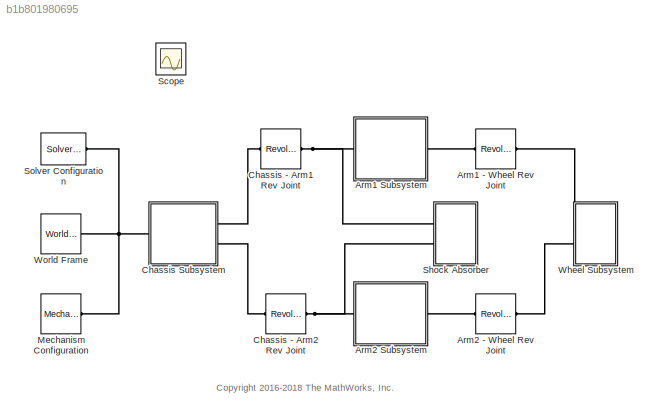
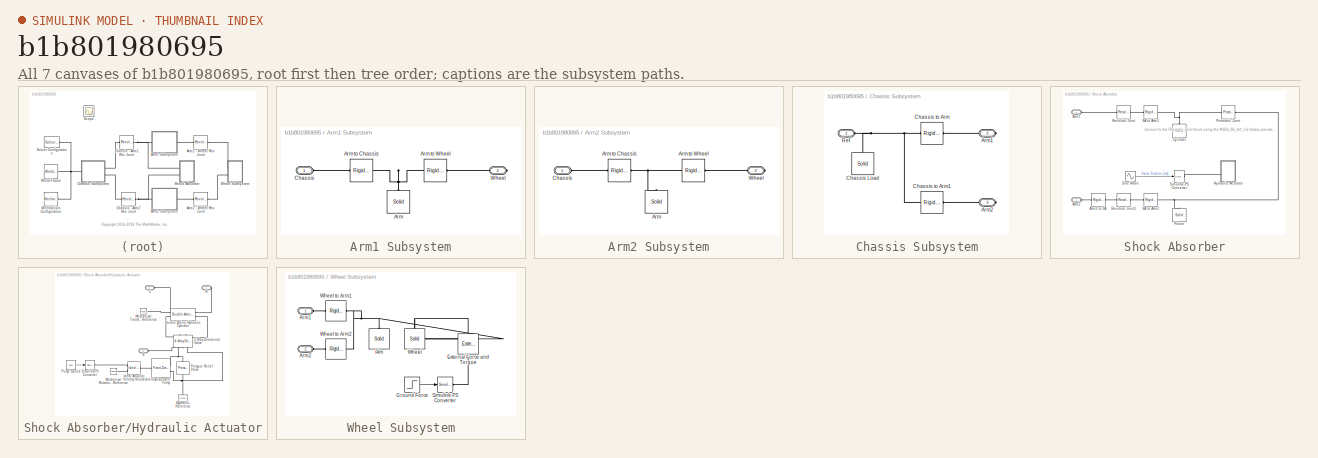
[diagram: thumbnail index - all 7 canvases of the model, root first then tree order]
MODEL slx_b1b801980695
KIND model
CONFIG AbsTol = auto
CONFIG EnableMultiTasking = on
CONFIG FixedStep = auto
CONFIG MaxStep = auto
CONFIG MinStep = auto
CONFIG PreLoadFcn = suspension_params;
CONFIG RelTol = 1e-3
CONFIG SampleTimeConstraint = Unconstrained
CONFIG Solver = ode23t
CONFIG SolverName = ode23t
CONFIG StartTime = 0.0
CONFIG StopTime = 10.0
BLOCK [Reference] Arm1 - Wheel Rev Joint  REF=sm_lib/Joints/Revolute Joint
  Ports = [0, 0, 0, 0, 0, 1, 1]
  SourceBlock = sm_lib/Joints/Revolute Joint
  SourceProductBaseCode = MS
  SourceProductName = Simscape Multibody
  SourceType = Revolute Joint
BLOCK [SubSystem] Arm1 Subsystem
  Ports = [0, 0, 0, 0, 0, 1, 1]
  RequestExecContextInheritance = off
  Variant = off
BLOCK [Reference] Arm1 Subsystem/Arm  REF=sm_lib/Body Elements/Solid
  Ports = [0, 0, 0, 0, 0, 0, 1]
  SourceBlock = sm_lib/Body Elements/Solid
  SourceProductBaseCode = MS
  SourceProductName = Simscape Multibody
  SourceType = Solid
BLOCK [Reference] Arm1 Subsystem/Arm to Chassis  REF=sm_lib/Frames and
Transforms/Rigid
Transform
  Ports = [0, 0, 0, 0, 0, 1, 1]
  SourceBlock = sm_lib/Frames and\nTransforms/Rigid\nTransform
  SourceProductBaseCode = MS
  SourceProductName = Simscape Multibody
  SourceType = Rigid\nTransform
BLOCK [Reference] Arm1 Subsystem/Arm to Wheel  REF=sm_lib/Frames and
Transforms/Rigid
Transform
  Ports = [0, 0, 0, 0, 0, 1, 1]
  SourceBlock = sm_lib/Frames and\nTransforms/Rigid\nTransform
  SourceProductBaseCode = MS
  SourceProductName = Simscape Multibody
  SourceType = Rigid\nTransform
BLOCK [PMIOPort] Arm1 Subsystem/Chassis
  Port = 1
  Side = Left
BLOCK [PMIOPort] Arm1 Subsystem/Wheel
  Port = 2
  Side = Right
BLOCK [Reference] Arm2 - Wheel Rev Joint  REF=sm_lib/Joints/Revolute Joint
  Ports = [0, 0, 0, 0, 0, 1, 1]
  SourceBlock = sm_lib/Joints/Revolute Joint
  SourceProductBaseCode = MS
  SourceProductName = Simscape Multibody
  SourceType = Revolute Joint
BLOCK [SubSystem] Arm2 Subsystem
  Ports = [0, 0, 0, 0, 0, 1, 1]
  RequestExecContextInheritance = off
  Variant = off
BLOCK [Reference] Arm2 Subsystem/Arm  REF=sm_lib/Body Elements/Solid
  Ports = [0, 0, 0, 0, 0, 0, 1]
  SourceBlock = sm_lib/Body Elements/Solid
  SourceProductBaseCode = MS
  SourceProductName = Simscape Multibody
  SourceType = Solid
BLOCK [Reference] Arm2 Subsystem/Arm to Chassis  REF=sm_lib/Frames and
Transforms/Rigid
Transform
  Ports = [0, 0, 0, 0, 0, 1, 1]
  SourceBlock = sm_lib/Frames and\nTransforms/Rigid\nTransform
  SourceProductBaseCode = MS
  SourceProductName = Simscape Multibody
  SourceType = Rigid\nTransform
BLOCK [Reference] Arm2 Subsystem/Arm to Wheel  REF=sm_lib/Frames and
Transforms/Rigid
Transform
  Ports = [0, 0, 0, 0, 0, 1, 1]
  SourceBlock = sm_lib/Frames and\nTransforms/Rigid\nTransform
  SourceProductBaseCode = MS
  SourceProductName = Simscape Multibody
  SourceType = Rigid\nTransform
BLOCK [PMIOPort] Arm2 Subsystem/Chassis
  Port = 1
  Side = Left
BLOCK [PMIOPort] Arm2 Subsystem/Wheel
  Port = 2
  Side = Right
BLOCK [Reference] Chassis - Arm1 Rev Joint  REF=sm_lib/Joints/Revolute Joint
  Ports = [0, 0, 0, 0, 0, 1, 1]
  SourceBlock = sm_lib/Joints/Revolute Joint
  SourceProductBaseCode = MS
  SourceProductName = Simscape Multibody
  SourceType = Revolute Joint
BLOCK [Reference] Chassis - Arm2 Rev Joint  REF=sm_lib/Joints/Revolute Joint
  Ports = [0, 0, 0, 0, 0, 1, 1]
  SourceBlock = sm_lib/Joints/Revolute Joint
  SourceProductBaseCode = MS
  SourceProductName = Simscape Multibody
  SourceType = Revolute Joint
BLOCK [SubSystem] Chassis Subsystem
  Ports = [0, 0, 0, 0, 0, 1, 2]
  RequestExecContextInheritance = off
  Variant = off
BLOCK [PMIOPort] Chassis Subsystem/Arm1
  Port = 2
  Side = Right
BLOCK [PMIOPort] Chassis Subsystem/Arm2
  Port = 3
  Side = Right
BLOCK [Reference] Chassis Subsystem/Chassis Load  REF=sm_lib/Body Elements/Solid
  Ports = [0, 0, 0, 0, 0, 0, 1]
  SourceBlock = sm_lib/Body Elements/Solid
  SourceProductBaseCode = MS
  SourceProductName = Simscape Multibody
  SourceType = Solid
BLOCK [Reference] Chassis Subsystem/Chassis to Arm  REF=sm_lib/Frames and
Transforms/Rigid
Transform
  Ports = [0, 0, 0, 0, 0, 1, 1]
  SourceBlock = sm_lib/Frames and\nTransforms/Rigid\nTransform
  SourceProductBaseCode = MS
  SourceProductName = Simscape Multibody
  SourceType = Rigid\nTransform
BLOCK [Reference] Chassis Subsystem/Chassis to Arm1  REF=sm_lib/Frames and
Transforms/Rigid
Transform
  Ports = [0, 0, 0, 0, 0, 1, 1]
  SourceBlock = sm_lib/Frames and\nTransforms/Rigid\nTransform
  SourceProductBaseCode = MS
  SourceProductName = Simscape Multibody
  SourceType = Rigid\nTransform
BLOCK [PMIOPort] Chassis Subsystem/Ref
  Port = 1
  Side = Left
BLOCK [Reference] Mechanism Configuration  REF=sm_lib/Utilities/Mechanism
Configuration
  Ports = [0, 0, 0, 0, 0, 0, 1]
  SourceBlock = sm_lib/Utilities/Mechanism\nConfiguration
  SourceProductBaseCode = MS
  SourceProductName = Simscape Multibody
  SourceType = Mechanism\nConfiguration
BLOCK [Scope] Scope
  IOType = viewer
  NumInputPorts = 1
  Ports = []
  ScopeSpecificationString = Simulink.scopes.TimeScopeBlockCfg('CurrentConfiguration', extmgr.ConfigurationSet(extmgr.Configuration('Core','General UI',true),extmgr.Configuration('Core','Source UI',true),extmgr.Configuration('Sources','WiredSimulink',true,'DataLoggingVariableName','ScopeData1'),extmgr.Configuration('Visuals','Time Domain',true,'SerializedDisplays',{struct('MinYLimReal','-0.62499','MaxYLimReal','0.625','YLabel...<+1407ch>
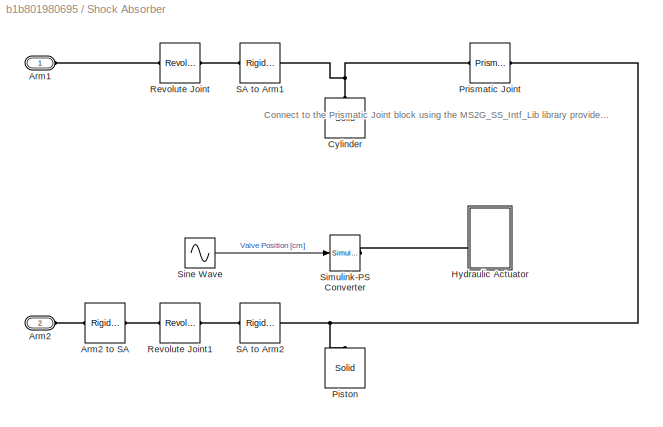
BLOCK [SubSystem] Shock Absorber
  Ports = [0, 0, 0, 0, 0, 2]
  RequestExecContextInheritance = off
  Variant = off
BLOCK [PMIOPort] Shock Absorber/Arm1
  Port = 1
  Side = Left
BLOCK [PMIOPort] Shock Absorber/Arm2
  Port = 2
  Side = Left
BLOCK [Reference] Shock Absorber/Arm2 to SA  REF=sm_lib/Frames and
Transforms/Rigid
Transform
  Ports = [0, 0, 0, 0, 0, 1, 1]
  SourceBlock = sm_lib/Frames and\nTransforms/Rigid\nTransform
  SourceProductBaseCode = MS
  SourceProductName = Simscape Multibody
  SourceType = Rigid\nTransform
BLOCK [Reference] Shock Absorber/Cylinder  REF=sm_lib/Body Elements/Solid
  Ports = [0, 0, 0, 0, 0, 0, 1]
  SourceBlock = sm_lib/Body Elements/Solid
  SourceProductBaseCode = MS
  SourceProductName = Simscape Multibody
  SourceType = Solid
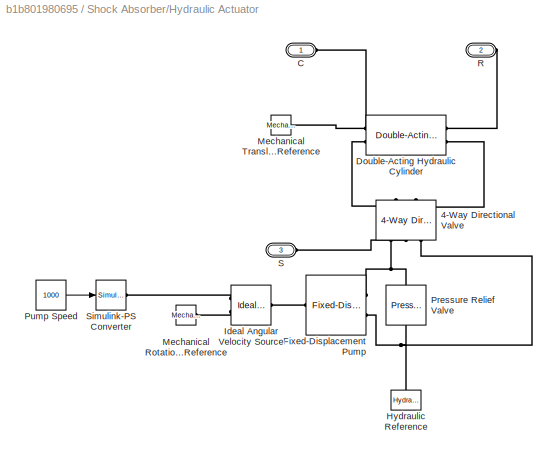
BLOCK [SubSystem] Shock Absorber/Hydraulic Actuator
  Ports = [0, 0, 0, 0, 0, 2, 1]
  RequestExecContextInheritance = off
  Variant = off
BLOCK [Reference] Shock Absorber/Hydraulic Actuator/4-Way Directional Valve  REF=sh_lib/Valves/Directional Valves/4-Way Directional
Valve
  Ports = [0, 0, 0, 0, 0, 2, 3]
  SourceBlock = sh_lib/Valves/Directional Valves/4-Way Directional\nValve
  SourceProductBaseCode = SH
  SourceProductName = Simscape Fluids
  SourceType = 4-Way Directional\nValve
BLOCK [PMIOPort] Shock Absorber/Hydraulic Actuator/C
  Port = 1
  Side = Left
BLOCK [Reference] Shock Absorber/Hydraulic Actuator/Double-Acting Hydraulic Cylinder  REF=sh_lib/Hydraulic Cylinders/Double-Acting
Hydraulic Cylinder
  Ports = [0, 0, 0, 0, 0, 2, 2]
  SourceBlock = sh_lib/Hydraulic Cylinders/Double-Acting\nHydraulic Cylinder
  SourceProductBaseCode = SH
  SourceProductName = Simscape Fluids
  SourceType = Double-Acting\nHydraulic Cylinder
BLOCK [Reference] Shock Absorber/Hydraulic Actuator/Fixed-Displacement Pump  REF=sh_lib/Pumps and Motors/Fixed-Displacement
Pump
  Ports = [0, 0, 0, 0, 0, 1, 2]
  SourceBlock = sh_lib/Pumps and Motors/Fixed-Displacement\nPump
  SourceProductBaseCode = SH
  SourceProductName = Simscape Fluids
  SourceType = Fixed-Displacement\nPump
BLOCK [Reference] Shock Absorber/Hydraulic Actuator/Hydraulic Reference  REF=fl_lib/Hydraulic/Hydraulic Elements/Hydraulic Reference
  Ports = [0, 0, 0, 0, 0, 1]
  SourceBlock = fl_lib/Hydraulic/Hydraulic Elements/Hydraulic Reference
  SourceProductBaseCode = SS
  SourceProductName = Simscape
  SourceType = Hydraulic Reference
BLOCK [Reference] Shock Absorber/Hydraulic Actuator/Ideal Angular Velocity Source  REF=fl_lib/Mechanical/Mechanical Sources/Ideal Angular
Velocity Source
  Ports = [0, 0, 0, 0, 0, 1, 2]
  SourceBlock = fl_lib/Mechanical/Mechanical Sources/Ideal Angular\nVelocity Source
  SourceProductBaseCode = SS
  SourceProductName = Simscape
  SourceType = Ideal Angular\nVelocity Source
BLOCK [Reference] Shock Absorber/Hydraulic Actuator/Mechanical Rotational Reference  REF=fl_lib/Mechanical/Rotational Elements/Mechanical
Rotational Reference
  Ports = [0, 0, 0, 0, 0, 1]
  SourceBlock = fl_lib/Mechanical/Rotational Elements/Mechanical\nRotational Reference
  SourceProductBaseCode = SS
  SourceProductName = Simscape
  SourceType = Mechanical\nRotational Reference
BLOCK [Reference] Shock Absorber/Hydraulic Actuator/Mechanical Translational Reference  REF=fl_lib/Mechanical/Translational
Elements/Mechanical
Translational
Reference
  Ports = [0, 0, 0, 0, 0, 1]
  SourceBlock = fl_lib/Mechanical/Translational\nElements/Mechanical\nTranslational\nReference
  SourceProductBaseCode = SS
  SourceProductName = Simscape
  SourceType = Mechanical\nTranslational\nReference
BLOCK [Reference] Shock Absorber/Hydraulic Actuator/Pressure Relief Valve  REF=sh_lib/Valves/Pressure Control
Valves/Pressure Relief
Valve
  Ports = [0, 0, 0, 0, 0, 1, 1]
  SourceBlock = sh_lib/Valves/Pressure Control\nValves/Pressure Relief\nValve
  SourceProductBaseCode = SH
  SourceProductName = Simscape Fluids
  SourceType = Pressure Relief\nValve
BLOCK [Constant] Shock Absorber/Hydraulic Actuator/Pump Speed
  Value = 1000
BLOCK [PMIOPort] Shock Absorber/Hydraulic Actuator/R
  Port = 2
  Side = Right
BLOCK [PMIOPort] Shock Absorber/Hydraulic Actuator/S
  Port = 3
  Side = Left
BLOCK [Reference] Shock Absorber/Hydraulic Actuator/Simulink-PS Converter  REF=nesl_utility/Simulink-PS
Converter
  Ports = [1, 0, 0, 0, 0, 0, 1]
  SourceBlock = nesl_utility/Simulink-PS\nConverter
  SourceProductBaseCode = SS
  SourceProductName = Simscape
  SourceType = Simulink-PS\nConverter
BLOCK [Reference] Shock Absorber/Piston  REF=sm_lib/Body Elements/Solid
  Ports = [0, 0, 0, 0, 0, 0, 1]
  SourceBlock = sm_lib/Body Elements/Solid
  SourceProductBaseCode = MS
  SourceProductName = Simscape Multibody
  SourceType = Solid
BLOCK [Reference] Shock Absorber/Prismatic Joint  REF=sm_lib/Joints/Prismatic
Joint
  Ports = [0, 0, 0, 0, 0, 1, 1]
  SourceBlock = sm_lib/Joints/Prismatic\nJoint
  SourceProductBaseCode = MS
  SourceProductName = Simscape Multibody
  SourceType = Prismatic\nJoint
BLOCK [Reference] Shock Absorber/Revolute Joint  REF=sm_lib/Joints/Revolute Joint
  Ports = [0, 0, 0, 0, 0, 1, 1]
  SourceBlock = sm_lib/Joints/Revolute Joint
  SourceProductBaseCode = MS
  SourceProductName = Simscape Multibody
  SourceType = Revolute Joint
BLOCK [Reference] Shock Absorber/Revolute Joint1  REF=sm_lib/Joints/Revolute Joint
  Ports = [0, 0, 0, 0, 0, 1, 1]
  SourceBlock = sm_lib/Joints/Revolute Joint
  SourceProductBaseCode = MS
  SourceProductName = Simscape Multibody
  SourceType = Revolute Joint
BLOCK [Reference] Shock Absorber/SA to Arm1  REF=sm_lib/Frames and
Transforms/Rigid
Transform
  Ports = [0, 0, 0, 0, 0, 1, 1]
  SourceBlock = sm_lib/Frames and\nTransforms/Rigid\nTransform
  SourceProductBaseCode = MS
  SourceProductName = Simscape Multibody
  SourceType = Rigid\nTransform
BLOCK [Reference] Shock Absorber/SA to Arm2  REF=sm_lib/Frames and
Transforms/Rigid
Transform
  Ports = [0, 0, 0, 0, 0, 1, 1]
  SourceBlock = sm_lib/Frames and\nTransforms/Rigid\nTransform
  SourceProductBaseCode = MS
  SourceProductName = Simscape Multibody
  SourceType = Rigid\nTransform
BLOCK [Reference] Shock Absorber/Simulink-PS Converter  REF=nesl_utility/Simulink-PS
Converter
  Ports = [1, 0, 0, 0, 0, 0, 1]
  SourceBlock = nesl_utility/Simulink-PS\nConverter
  SourceProductBaseCode = SS
  SourceProductName = Simscape
  SourceType = Simulink-PS\nConverter
BLOCK [Sin] Shock Absorber/Sine Wave
  Amplitude = 0.5
  Frequency = 2
  Ports = [0, 1]
  SampleTime = 0
BLOCK [Reference] Solver Configuration  REF=nesl_utility/Solver
Configuration
  Ports = [0, 0, 0, 0, 0, 0, 1]
  SourceBlock = nesl_utility/Solver\nConfiguration
  SourceProductBaseCode = SS
  SourceProductName = Simscape
  SourceType = Solver\nConfiguration
BLOCK [SubSystem] Wheel Subsystem
  Ports = [0, 0, 0, 0, 0, 2]
  RequestExecContextInheritance = off
  Variant = off
BLOCK [PMIOPort] Wheel Subsystem/Arm1
  Port = 1
  Side = Left
BLOCK [PMIOPort] Wheel Subsystem/Arm2
  Port = 2
  Side = Left
BLOCK [Reference] Wheel Subsystem/External Force and Torque  REF=sm_lib/Forces and
Torques/External Force
and Torque
  Ports = [0, 0, 0, 0, 0, 1, 1]
  SourceBlock = sm_lib/Forces and\nTorques/External Force\nand Torque
  SourceProductBaseCode = MS
  SourceProductName = Simscape Multibody
  SourceType = External Force\nand Torque
BLOCK [Step] Wheel Subsystem/Ground Force
  After = 1e5
  SampleTime = 0
  Time = 5
BLOCK [Reference] Wheel Subsystem/Rim  REF=sm_lib/Body Elements/Solid
  Ports = [0, 0, 0, 0, 0, 0, 1]
  SourceBlock = sm_lib/Body Elements/Solid
  SourceProductBaseCode = MS
  SourceProductName = Simscape Multibody
  SourceType = Solid
BLOCK [Reference] Wheel Subsystem/Simulink-PS Converter  REF=nesl_utility/Simulink-PS
Converter
  Ports = [1, 0, 0, 0, 0, 0, 1]
  SourceBlock = nesl_utility/Simulink-PS\nConverter
  SourceProductBaseCode = SS
  SourceProductName = Simscape
  SourceType = Simulink-PS\nConverter
BLOCK [Reference] Wheel Subsystem/Wheel  REF=sm_lib/Body Elements/Solid
  Ports = [0, 0, 0, 0, 0, 0, 1]
  SourceBlock = sm_lib/Body Elements/Solid
  SourceProductBaseCode = MS
  SourceProductName = Simscape Multibody
  SourceType = Solid
BLOCK [Reference] Wheel Subsystem/Wheel to Arm1  REF=sm_lib/Frames and
Transforms/Rigid
Transform
  Ports = [0, 0, 0, 0, 0, 1, 1]
  SourceBlock = sm_lib/Frames and\nTransforms/Rigid\nTransform
  SourceProductBaseCode = MS
  SourceProductName = Simscape Multibody
  SourceType = Rigid\nTransform
BLOCK [Reference] Wheel Subsystem/Wheel to Arm2  REF=sm_lib/Frames and
Transforms/Rigid
Transform
  Ports = [0, 0, 0, 0, 0, 1, 1]
  SourceBlock = sm_lib/Frames and\nTransforms/Rigid\nTransform
  SourceProductBaseCode = MS
  SourceProductName = Simscape Multibody
  SourceType = Rigid\nTransform
BLOCK [Reference] World Frame  REF=sm_lib/Frames and
Transforms/World Frame
  Ports = [0, 0, 0, 0, 0, 0, 1]
  SourceBlock = sm_lib/Frames and\nTransforms/World Frame
  SourceProductBaseCode = MS
  SourceProductName = Simscape Multibody
  SourceType = World Frame
ANNOTATION (root): <copyright redacted>
ANNOTATION Shock Absorber: Connect to the Prismatic Joint block using the MS2G_SS_Intf_Lib library provided.
LINE Shock Absorber/Hydraulic Actuator/Pump Speed:1 -> Shock Absorber/Hydraulic Actuator/Simulink-PS Converter:1
LINE Shock Absorber/Sine Wave:1 -> Shock Absorber/Simulink-PS Converter:1
LINE Wheel Subsystem/Ground Force:1 -> Wheel Subsystem/Simulink-PS Converter:1
PLINE Arm1 - Wheel Rev Joint:LConn1 -- Arm1 Subsystem:RConn1
PLINE Arm1 - Wheel Rev Joint:RConn1 -- Wheel Subsystem:LConn1
PNET net1: Arm1 Subsystem/Arm to Chassis:LConn1 -- Arm1 Subsystem/Arm to Wheel:LConn1 -- Arm1 Subsystem/Arm:RConn1
PLINE Arm1 Subsystem/Arm to Chassis:RConn1 -- Arm1 Subsystem/Chassis:RConn1
PLINE Arm1 Subsystem/Arm to Wheel:RConn1 -- Arm1 Subsystem/Wheel:RConn1
PNET net2: Arm1 Subsystem:LConn1 -- Chassis - Arm1 Rev Joint:RConn1 -- Shock Absorber:LConn1
PLINE Arm2 - Wheel Rev Joint:LConn1 -- Arm2 Subsystem:RConn1
PLINE Arm2 - Wheel Rev Joint:RConn1 -- Wheel Subsystem:LConn2
PNET net3: Arm2 Subsystem/Arm to Chassis:LConn1 -- Arm2 Subsystem/Arm to Wheel:LConn1 -- Arm2 Subsystem/Arm:RConn1
PLINE Arm2 Subsystem/Arm to Chassis:RConn1 -- Arm2 Subsystem/Chassis:RConn1
PLINE Arm2 Subsystem/Arm to Wheel:RConn1 -- Arm2 Subsystem/Wheel:RConn1
PNET net4: Arm2 Subsystem:LConn1 -- Chassis - Arm2 Rev Joint:RConn1 -- Shock Absorber:LConn2
PLINE Chassis - Arm1 Rev Joint:LConn1 -- Chassis Subsystem:RConn1
PLINE Chassis - Arm2 Rev Joint:LConn1 -- Chassis Subsystem:RConn2
PLINE Chassis Subsystem/Arm1:RConn1 -- Chassis Subsystem/Chassis to Arm:RConn1
PLINE Chassis Subsystem/Arm2:RConn1 -- Chassis Subsystem/Chassis to Arm1:RConn1
PNET net5: Chassis Subsystem/Chassis Load:RConn1 -- Chassis Subsystem/Chassis to Arm1:LConn1 -- Chassis Subsystem/Chassis to Arm:LConn1 -- Chassis Subsystem/Ref:RConn1
PNET net6: Chassis Subsystem:LConn1 -- Mechanism Configuration:RConn1 -- Solver Configuration:RConn1 -- World Frame:RConn1
PLINE Shock Absorber/Arm1:RConn1 -- Shock Absorber/Revolute Joint:LConn1
PLINE Shock Absorber/Arm2 to SA:LConn1 -- Shock Absorber/Arm2:RConn1
PLINE Shock Absorber/Arm2 to SA:RConn1 -- Shock Absorber/Revolute Joint1:LConn1
PNET net7: Shock Absorber/Cylinder:RConn1 -- Shock Absorber/Prismatic Joint:LConn1 -- Shock Absorber/SA to Arm1:LConn1
PLINE Shock Absorber/Hydraulic Actuator/4-Way Directional Valve:LConn1 -- Shock Absorber/Hydraulic Actuator/Double-Acting Hydraulic Cylinder:LConn2
PLINE Shock Absorber/Hydraulic Actuator/4-Way Directional Valve:LConn2 -- Shock Absorber/Hydraulic Actuator/Double-Acting Hydraulic Cylinder:RConn2
PLINE Shock Absorber/Hydraulic Actuator/4-Way Directional Valve:RConn1 -- Shock Absorber/Hydraulic Actuator/S:RConn1
PNET net8: Shock Absorber/Hydraulic Actuator/4-Way Directional Valve:RConn2 -- Shock Absorber/Hydraulic Actuator/Fixed-Displacement Pump:RConn1 -- Shock Absorber/Hydraulic Actuator/Pressure Relief Valve:LConn1
PNET net9: Shock Absorber/Hydraulic Actuator/4-Way Directional Valve:RConn3 -- Shock Absorber/Hydraulic Actuator/Fixed-Displacement Pump:RConn2 -- Shock Absorber/Hydraulic Actuator/Hydraulic Reference:LConn1 -- Shock Absorber/Hydraulic Actuator/Pressure Relief Valve:RConn1
PNET net10: Shock Absorber/Hydraulic Actuator/C:RConn1 -- Shock Absorber/Hydraulic Actuator/Double-Acting Hydraulic Cylinder:LConn1 -- Shock Absorber/Hydraulic Actuator/Mechanical Translational Reference:LConn1
PLINE Shock Absorber/Hydraulic Actuator/Double-Acting Hydraulic Cylinder:RConn1 -- Shock Absorber/Hydraulic Actuator/R:RConn1
PLINE Shock Absorber/Hydraulic Actuator/Fixed-Displacement Pump:LConn1 -- Shock Absorber/Hydraulic Actuator/Ideal Angular Velocity Source:LConn1
PLINE Shock Absorber/Hydraulic Actuator/Ideal Angular Velocity Source:RConn1 -- Shock Absorber/Hydraulic Actuator/Simulink-PS Converter:RConn1
PLINE Shock Absorber/Hydraulic Actuator/Ideal Angular Velocity Source:RConn2 -- Shock Absorber/Hydraulic Actuator/Mechanical Rotational Reference:LConn1
PLINE Shock Absorber/Hydraulic Actuator:LConn2 -- Shock Absorber/Simulink-PS Converter:RConn1
PNET net11: Shock Absorber/Piston:RConn1 -- Shock Absorber/Prismatic Joint:RConn1 -- Shock Absorber/SA to Arm2:LConn1
PLINE Shock Absorber/Revolute Joint1:RConn1 -- Shock Absorber/SA to Arm2:RConn1
PLINE Shock Absorber/Revolute Joint:RConn1 -- Shock Absorber/SA to Arm1:RConn1
PLINE Wheel Subsystem/Arm1:RConn1 -- Wheel Subsystem/Wheel to Arm1:RConn1
PLINE Wheel Subsystem/Arm2:RConn1 -- Wheel Subsystem/Wheel to Arm2:RConn1
PLINE Wheel Subsystem/External Force and Torque:LConn1 -- Wheel Subsystem/Simulink-PS Converter:RConn1
PNET net12: Wheel Subsystem/External Force and Torque:RConn1 -- Wheel Subsystem/Rim:RConn1 -- Wheel Subsystem/Wheel to Arm1:LConn1 -- Wheel Subsystem/Wheel to Arm2:LConn1 -- Wheel Subsystem/Wheel:RConn1
note: PNET lines group multi-terminal physical nets as a canonical sorted terminal list (undirected conserving connections); 2-terminal nets keep the pairwise PLINE form
